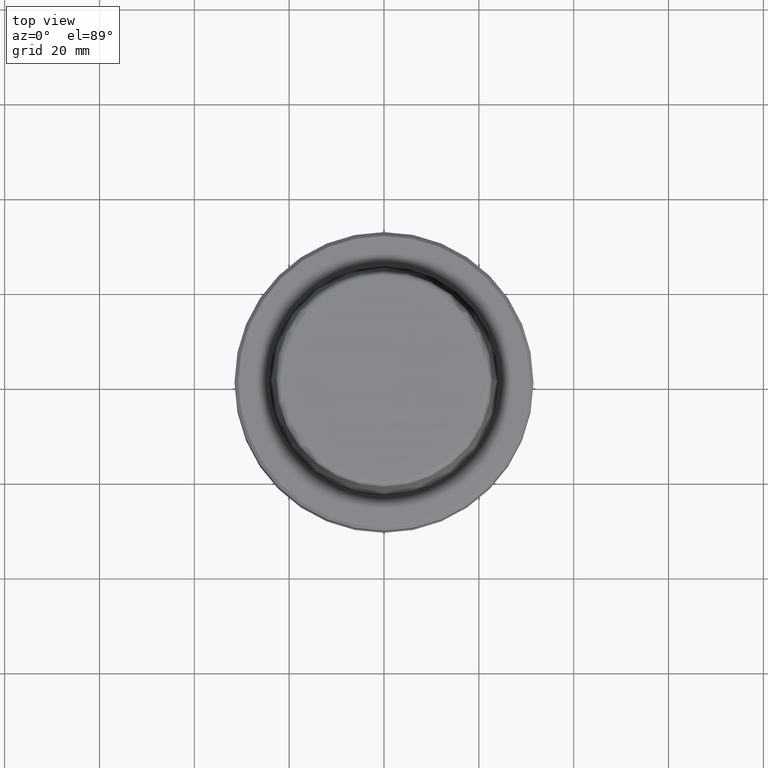
[diagram: clean part render]
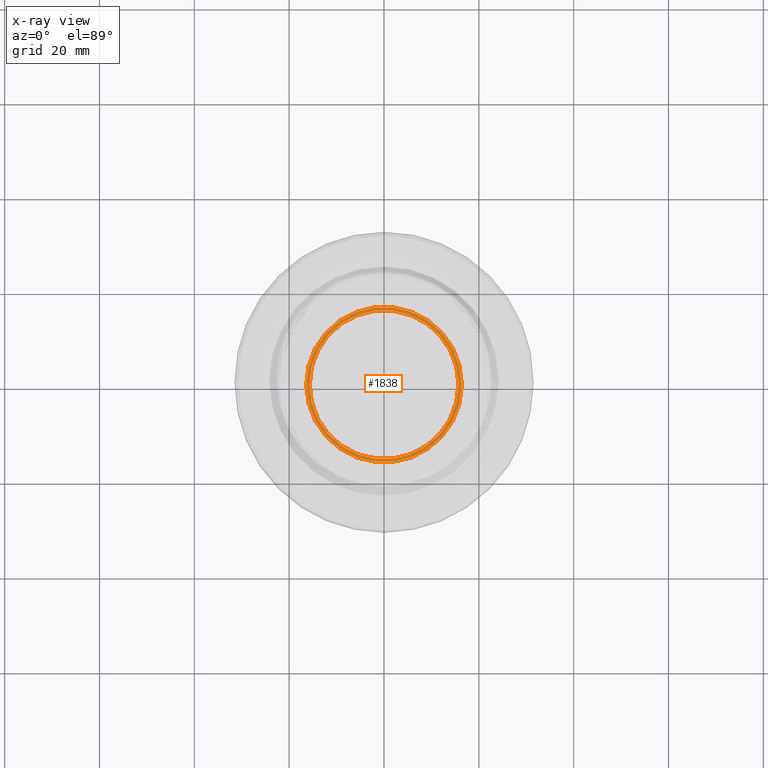
[diagram: x-ray — body ghosted, one internal face saturated and labeled with its STEP entity id]
A machine part, top view, then the same camera in x-ray: the body is ghosted and one INTERNAL B-rep face — a face not visible from any outside direction — is saturated and labeled: STEP entity #1838.
In plain terms, the highlighted planar face has unit normal (0, 0, -1).
Its self-contained STEP definition (entity closure, byte-faithful):
#34 = EDGE_LOOP ( 'NONE', ( #107, #405 ) ) ;
#107 = ORIENTED_EDGE ( 'NONE', *, *, #1373, .T. ) ;
#152 = DIRECTION ( 'NONE',  ( 1.000000000000000000, 0.0000000000000000000, 0.0000000000000000000 ) ) ;
#165 = VERTEX_POINT ( 'NONE', #1386 ) ;
#177 = EDGE_CURVE ( 'NONE', #1703, #431, #1147, .T. ) ;
#234 = CIRCLE ( 'NONE', #878, 16.39061569285838300 ) ;
#292 = AXIS2_PLACEMENT_3D ( 'NONE', #1587, #1746, #824 ) ;
#299 = DIRECTION ( 'NONE',  ( -0.0000000000000000000, -0.0000000000000000000, 1.000000000000000000 ) ) ;
#405 = ORIENTED_EDGE ( 'NONE', *, *, #1262, .T. ) ;
#431 = VERTEX_POINT ( 'NONE', #1301 ) ;
#483 = DIRECTION ( 'NONE',  ( -0.0000000000000000000, -0.0000000000000000000, 1.000000000000000000 ) ) ;
#503 = PLANE ( 'NONE',  #292 ) ;
#526 = AXIS2_PLACEMENT_3D ( 'NONE', #1860, #1760, #834 ) ;
#537 = CARTESIAN_POINT ( 'NONE',  ( -16.39061569285838300, 0.0000000000000000000, -39.89999999999807300 ) ) ;
#582 = ORIENTED_EDGE ( 'NONE', *, *, #177, .F. ) ;
#724 = VERTEX_POINT ( 'NONE', #537 ) ;
#759 = EDGE_CURVE ( 'NONE', #431, #1703, #1310, .T. ) ;
#824 = DIRECTION ( 'NONE',  ( -1.000000000000000000, 0.0000000000000000000, -0.0000000000000000000 ) ) ;
#834 = DIRECTION ( 'NONE',  ( 1.000000000000000000, 0.0000000000000000000, 0.0000000000000000000 ) ) ;
#878 = AXIS2_PLACEMENT_3D ( 'NONE', #1230, #299, #1388 ) ;
#905 = FACE_OUTER_BOUND ( 'NONE', #34, .T. ) ;
#1097 = DIRECTION ( 'NONE',  ( -0.0000000000000000000, -0.0000000000000000000, 1.000000000000000000 ) ) ;
#1102 = CARTESIAN_POINT ( 'NONE',  ( 0.0000000000000000000, 0.0000000000000000000, -39.89999999999807300 ) ) ;
#1147 = CIRCLE ( 'NONE', #526, 15.70000000000005100 ) ;
#1219 = AXIS2_PLACEMENT_3D ( 'NONE', #1102, #1097, #152 ) ;
#1230 = CARTESIAN_POINT ( 'NONE',  ( 0.0000000000000000000, 0.0000000000000000000, -39.89999999999807300 ) ) ;
#1262 = EDGE_CURVE ( 'NONE', #165, #724, #1693, .T. ) ;
#1264 = FACE_BOUND ( 'NONE', #1267, .T. ) ;
#1267 = EDGE_LOOP ( 'NONE', ( #582, #1515 ) ) ;
#1301 = CARTESIAN_POINT ( 'NONE',  ( -15.70000000000005100, 1.922695474661350600E-015, -39.89999999999807300 ) ) ;
#1310 = CIRCLE ( 'NONE', #1219, 15.70000000000005100 ) ;
#1373 = EDGE_CURVE ( 'NONE', #724, #165, #234, .T. ) ;
#1386 = CARTESIAN_POINT ( 'NONE',  ( 16.39061569285838300, 2.031764440414256600E-015, -39.89999999999807300 ) ) ;
#1388 = DIRECTION ( 'NONE',  ( 1.000000000000000000, 0.0000000000000000000, 0.0000000000000000000 ) ) ;
#1413 = CARTESIAN_POINT ( 'NONE',  ( 0.0000000000000000000, 0.0000000000000000000, -39.89999999999807300 ) ) ;
#1515 = ORIENTED_EDGE ( 'NONE', *, *, #759, .F. ) ;
#1550 = CARTESIAN_POINT ( 'NONE',  ( 15.70000000000005100, 0.0000000000000000000, -39.89999999999807300 ) ) ;
#1579 = DIRECTION ( 'NONE',  ( 1.000000000000000000, 0.0000000000000000000, 0.0000000000000000000 ) ) ;
#1587 = CARTESIAN_POINT ( 'NONE',  ( 0.0000000000000000000, 0.0000000000000000000, -39.89999999999807300 ) ) ;
#1693 = CIRCLE ( 'NONE', #1744, 16.39061569285838300 ) ;
#1703 = VERTEX_POINT ( 'NONE', #1550 ) ;
#1744 = AXIS2_PLACEMENT_3D ( 'NONE', #1413, #483, #1579 ) ;
#1746 = DIRECTION ( 'NONE',  ( 0.0000000000000000000, 0.0000000000000000000, -1.000000000000000000 ) ) ;
#1760 = DIRECTION ( 'NONE',  ( -0.0000000000000000000, -0.0000000000000000000, 1.000000000000000000 ) ) ;
#1838 = ADVANCED_FACE ( 'NONE', ( #1264, #905 ), #503, .F. ) ;
#1860 = CARTESIAN_POINT ( 'NONE',  ( 0.0000000000000000000, 0.0000000000000000000, -39.89999999999807300 ) ) ;